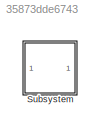
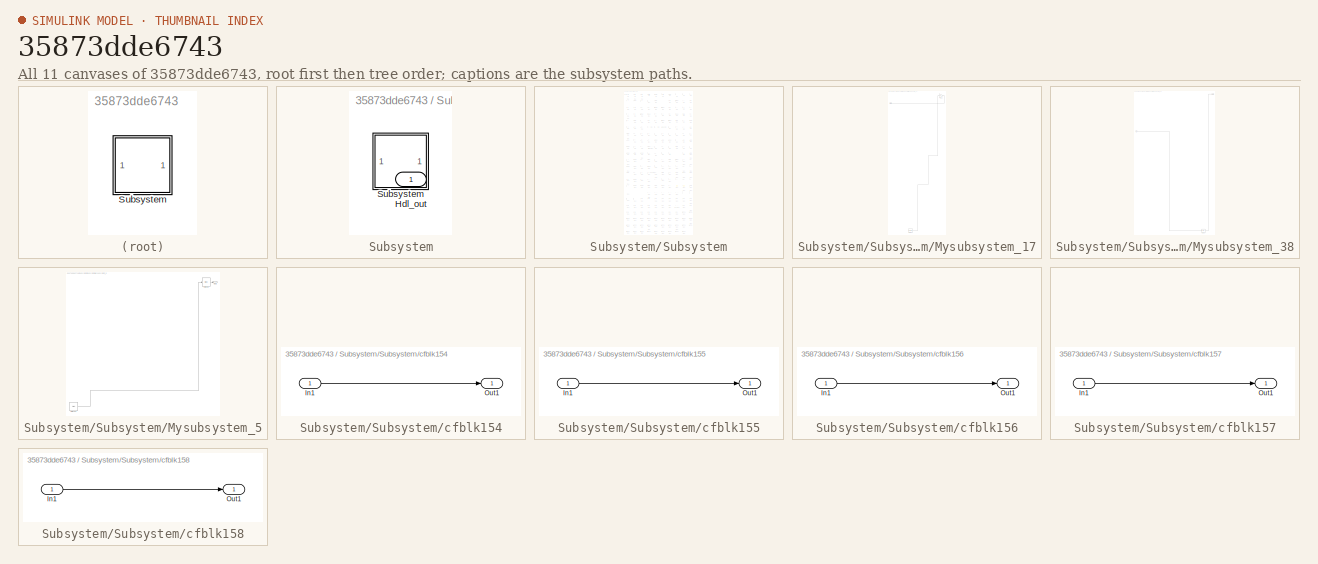
[diagram: thumbnail index - all 11 canvases of the model, root first then tree order]
MODEL slx_35873dde6743
KIND model
CONFIG AbsTol = auto
CONFIG EnableMultiTasking = off
CONFIG FixedStep = auto
CONFIG MaxStep = auto
CONFIG MinStep = auto
CONFIG RelTol = 1e-3
CONFIG SampleTimeConstraint = Unconstrained
CONFIG SolverName = VariableStepAuto
CONFIG StartTime = 0.0
CONFIG StopTime = 10.0
BLOCK [SubSystem] Subsystem
BLOCK [Outport] Subsystem/Hdl_out
  OutDataTypeStr = uint8
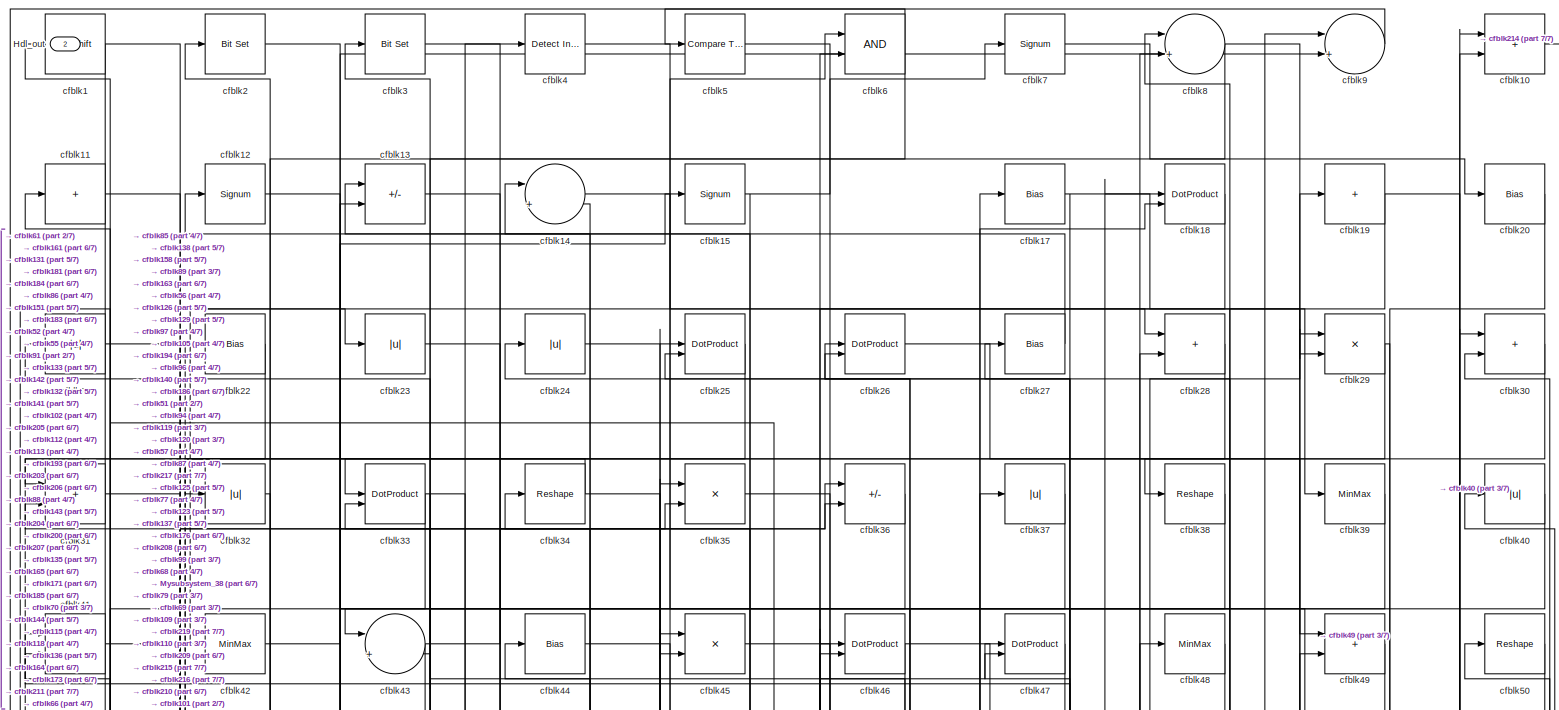
[diagram: Subsystem/Subsystem - part 1/7, full width, top band]
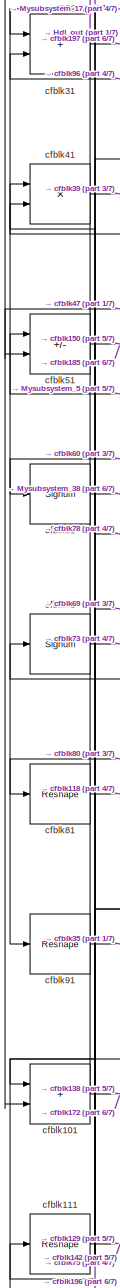
[diagram: Subsystem/Subsystem - part 2/7, middle left region]
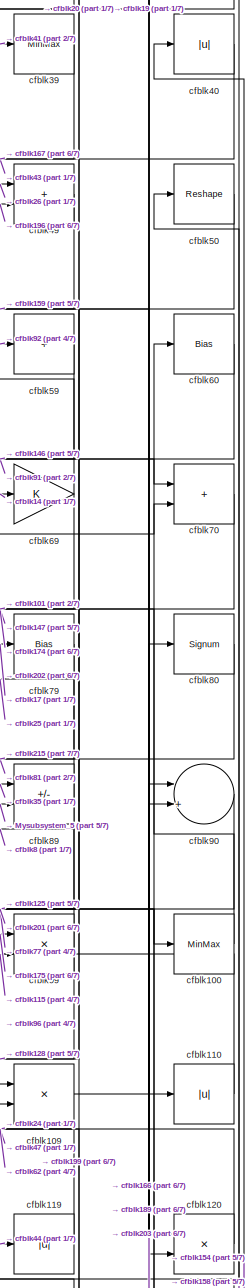
[diagram: Subsystem/Subsystem - part 3/7, middle right region]
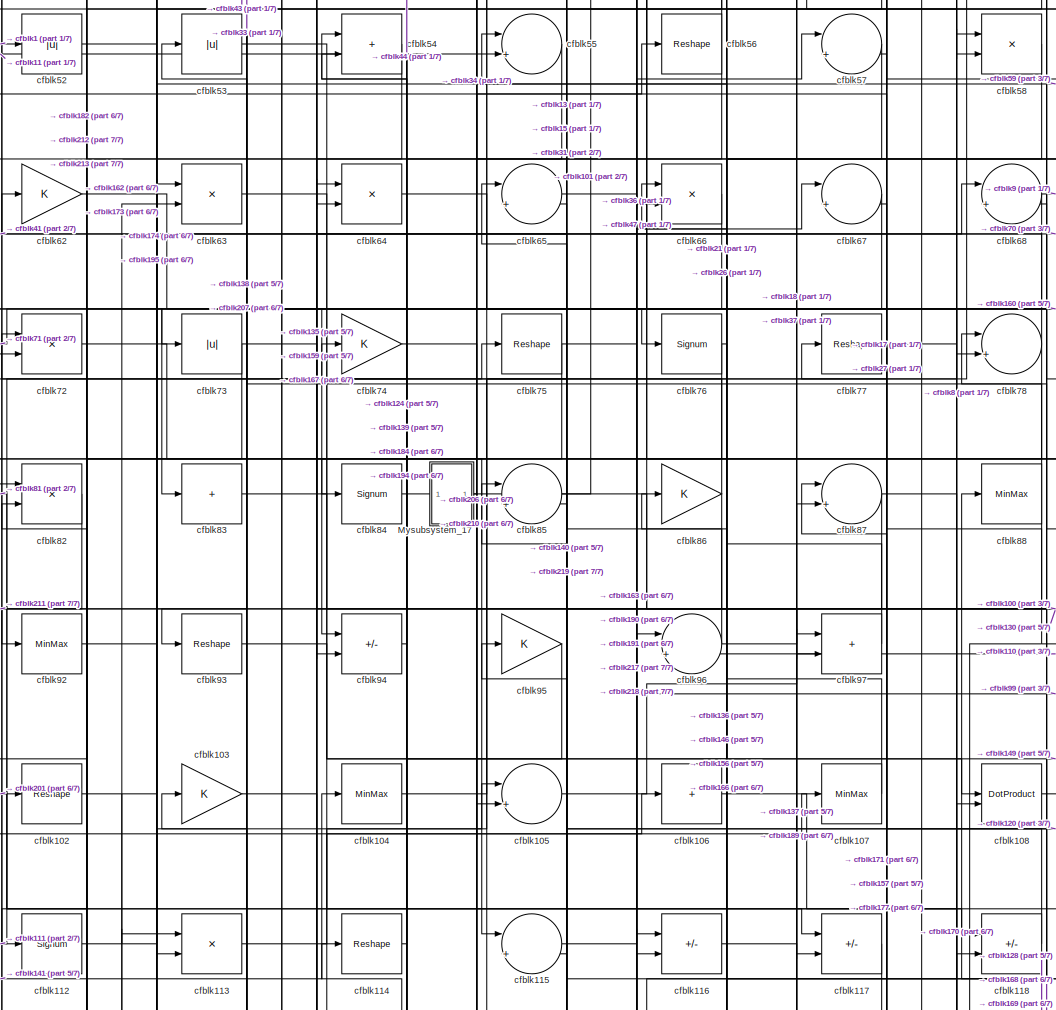
[diagram: Subsystem/Subsystem - part 4/7, central region]
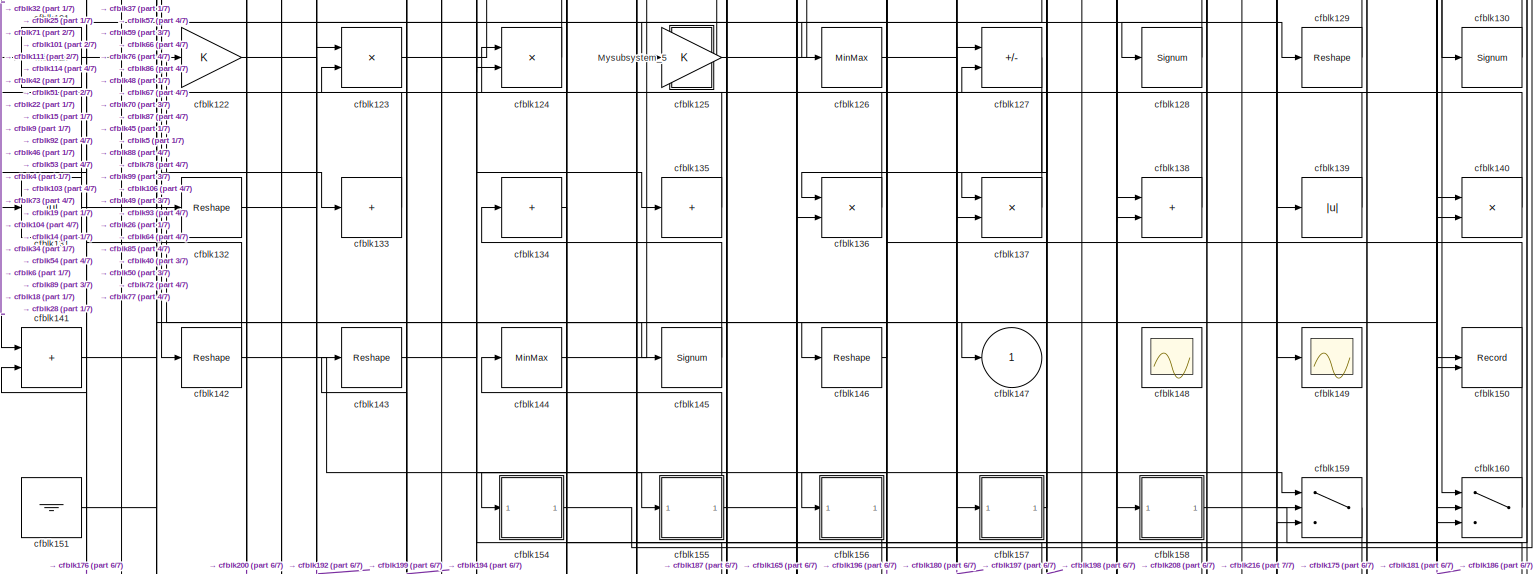
[diagram: Subsystem/Subsystem - part 5/7, full width, middle band]
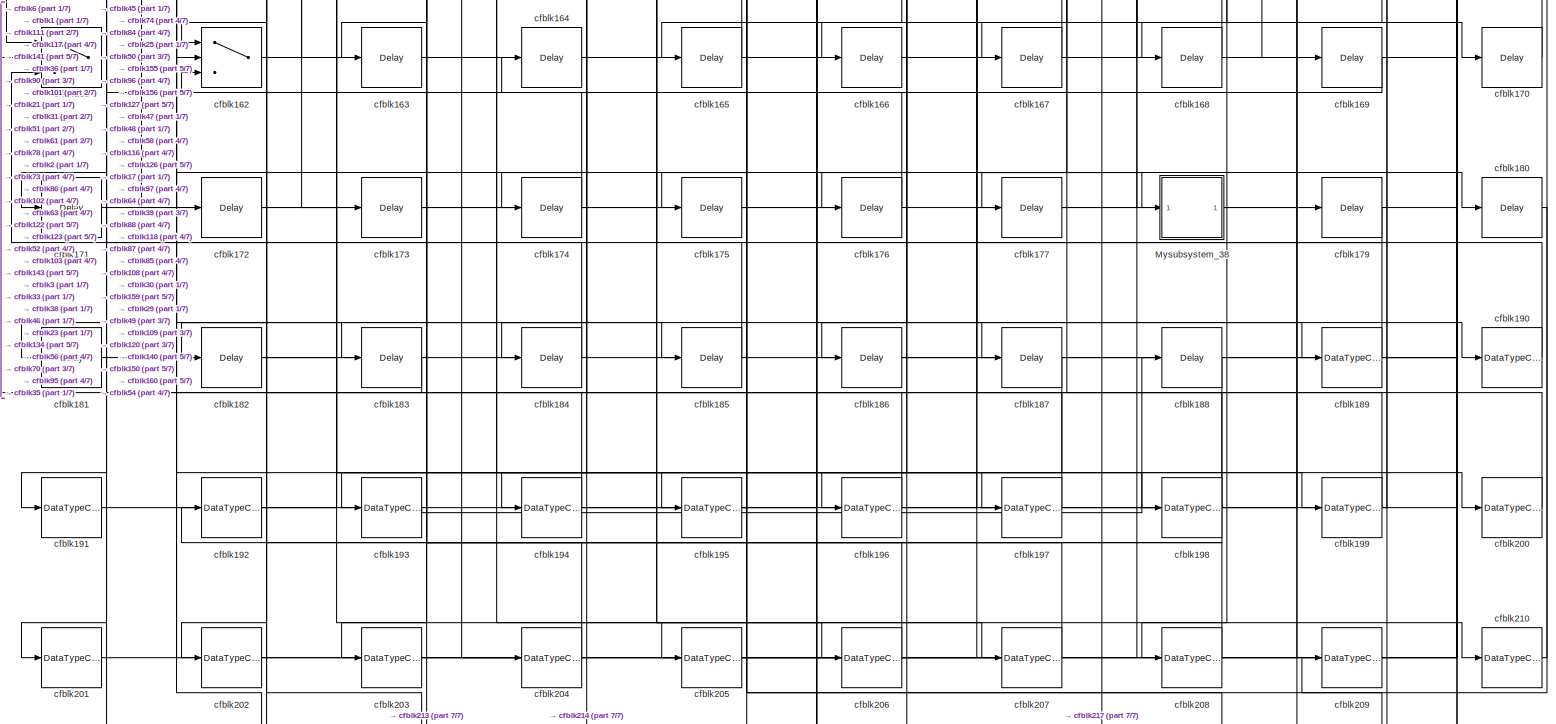
[diagram: Subsystem/Subsystem - part 6/7, full width, bottom band]
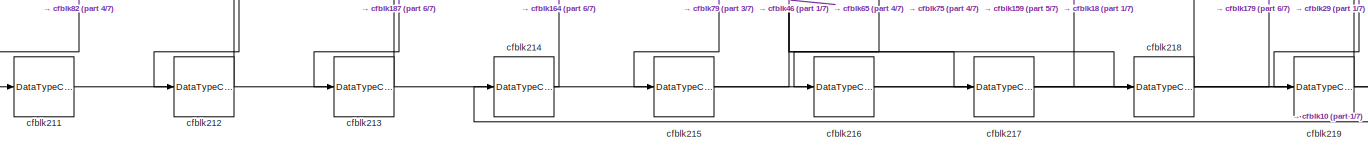
[diagram: Subsystem/Subsystem - part 7/7, full width, bottom band]
BLOCK [SubSystem] Subsystem/Subsystem
BLOCK [Outport] Subsystem/Subsystem/Hdl_out
  OutDataTypeStr = uint8
  Port = 2
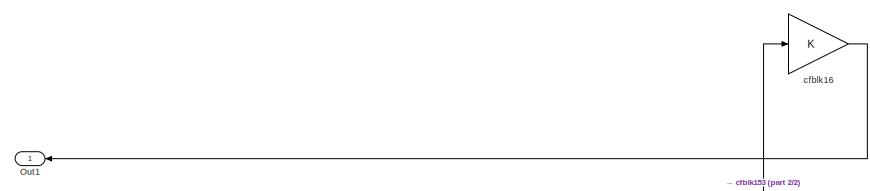
[diagram: Subsystem/Subsystem/Mysubsystem_17 - part 1/2, full width, top band]
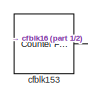
[diagram: Subsystem/Subsystem/Mysubsystem_17 - part 2/2, bottom center region]
BLOCK [SubSystem] Subsystem/Subsystem/Mysubsystem_17
  RTWFcnName = Mysubsystem_17
  RTWFcnNameOpts = User specified
  RTWFileNameOpts = Use function name
  RTWSystemCode = Reusable function
  TreatAsAtomicUnit = on
BLOCK [Outport] Subsystem/Subsystem/Mysubsystem_17/Out1
BLOCK [Reference] Subsystem/Subsystem/Mysubsystem_17/cfblk153  REF=hdlsllib/Sources/Counter
Free-Running
  SourceBlock = hdlsllib/Sources/Counter\nFree-Running
  SourceType = Counter Free-Running
BLOCK [Gain] Subsystem/Subsystem/Mysubsystem_17/cfblk16
BLOCK [SubSystem] Subsystem/Subsystem/Mysubsystem_38
  RTWFcnName = Mysubsystem_38
  RTWFcnNameOpts = User specified
  RTWFileNameOpts = Use function name
  RTWSystemCode = Reusable function
  TreatAsAtomicUnit = on
BLOCK [Inport] Subsystem/Subsystem/Mysubsystem_38/In1
BLOCK [Outport] Subsystem/Subsystem/Mysubsystem_38/Out1
BLOCK [Delay] Subsystem/Subsystem/Mysubsystem_38/cfblk178
  InputPortMap = u0
  SampleTime = 1
BLOCK [SubSystem] Subsystem/Subsystem/Mysubsystem_5
  RTWFcnName = Mysubsystem_5
  RTWFcnNameOpts = User specified
  RTWFileNameOpts = Use function name
  RTWSystemCode = Reusable function
  TreatAsAtomicUnit = on
BLOCK [Outport] Subsystem/Subsystem/Mysubsystem_5/Out1
BLOCK [Ground] Subsystem/Subsystem/Mysubsystem_5/cfblk152
BLOCK [Bias] Subsystem/Subsystem/Mysubsystem_5/cfblk98
  Bias = 0.0
  SaturateOnIntegerOverflow = off
BLOCK [Reference] Subsystem/Subsystem/cfblk1  REF=hdlsllib/Logic and Bit
Operations/Bit Shift
  SourceBlock = hdlsllib/Logic and Bit\nOperations/Bit Shift
  SourceType = Bit Shift
BLOCK [Sum] Subsystem/Subsystem/cfblk10
  IconShape = rectangular
  OutDataTypeStr = uint8
BLOCK [MinMax] Subsystem/Subsystem/cfblk100
  OutDataTypeStr = uint8
BLOCK [Sum] Subsystem/Subsystem/cfblk101
  IconShape = rectangular
  OutDataTypeStr = uint8
BLOCK [Reshape] Subsystem/Subsystem/cfblk102
BLOCK [Gain] Subsystem/Subsystem/cfblk103
  OutDataTypeStr = uint8
BLOCK [MinMax] Subsystem/Subsystem/cfblk104
  OutDataTypeStr = uint8
BLOCK [Sum] Subsystem/Subsystem/cfblk105
  Inputs = |++
  OutDataTypeStr = uint8
BLOCK [Sum] Subsystem/Subsystem/cfblk106
  IconShape = rectangular
  Inputs = +
  OutDataTypeStr = uint8
BLOCK [MinMax] Subsystem/Subsystem/cfblk107
  OutDataTypeStr = uint8
BLOCK [DotProduct] Subsystem/Subsystem/cfblk108
  OutDataTypeStr = uint8
BLOCK [Product] Subsystem/Subsystem/cfblk109
  Inputs = */
  OutDataTypeStr = uint8
  RndMeth = Zero
  SaturateOnIntegerOverflow = on
BLOCK [Sum] Subsystem/Subsystem/cfblk11
  IconShape = rectangular
  Inputs = +
  OutDataTypeStr = uint8
BLOCK [Abs] Subsystem/Subsystem/cfblk110
  OutDataTypeStr = uint8
  SaturateOnIntegerOverflow = off
BLOCK [Reshape] Subsystem/Subsystem/cfblk111
BLOCK [Signum] Subsystem/Subsystem/cfblk112
BLOCK [Product] Subsystem/Subsystem/cfblk113
  Inputs = */
  OutDataTypeStr = uint8
  RndMeth = Zero
  SaturateOnIntegerOverflow = on
BLOCK [Reshape] Subsystem/Subsystem/cfblk114
BLOCK [Sum] Subsystem/Subsystem/cfblk115
  Inputs = |++
  OutDataTypeStr = uint8
BLOCK [Sum] Subsystem/Subsystem/cfblk116
  IconShape = rectangular
  Inputs = +-
  OutDataTypeStr = uint8
BLOCK [Sum] Subsystem/Subsystem/cfblk117
  IconShape = rectangular
  Inputs = +-
  OutDataTypeStr = uint8
BLOCK [Sum] Subsystem/Subsystem/cfblk118
  IconShape = rectangular
  Inputs = +-
  OutDataTypeStr = uint8
BLOCK [Abs] Subsystem/Subsystem/cfblk119
  OutDataTypeStr = uint8
  SaturateOnIntegerOverflow = off
BLOCK [Signum] Subsystem/Subsystem/cfblk12
BLOCK [Product] Subsystem/Subsystem/cfblk120
  Inputs = */
  OutDataTypeStr = uint8
  RndMeth = Zero
  SaturateOnIntegerOverflow = on
BLOCK [MinMax] Subsystem/Subsystem/cfblk121
  OutDataTypeStr = uint8
BLOCK [Gain] Subsystem/Subsystem/cfblk122
  OutDataTypeStr = uint8
BLOCK [Product] Subsystem/Subsystem/cfblk123
  Inputs = */
  OutDataTypeStr = uint8
  RndMeth = Zero
  SaturateOnIntegerOverflow = on
BLOCK [Product] Subsystem/Subsystem/cfblk124
  Inputs = */
  OutDataTypeStr = uint8
  RndMeth = Zero
  SaturateOnIntegerOverflow = on
BLOCK [Gain] Subsystem/Subsystem/cfblk125
  OutDataTypeStr = uint8
BLOCK [MinMax] Subsystem/Subsystem/cfblk126
  OutDataTypeStr = uint8
BLOCK [Sum] Subsystem/Subsystem/cfblk127
  IconShape = rectangular
  Inputs = +-
  OutDataTypeStr = uint8
BLOCK [Signum] Subsystem/Subsystem/cfblk128
BLOCK [Reshape] Subsystem/Subsystem/cfblk129
BLOCK [Sum] Subsystem/Subsystem/cfblk13
  IconShape = rectangular
  Inputs = +-
  OutDataTypeStr = uint8
BLOCK [Signum] Subsystem/Subsystem/cfblk130
BLOCK [Abs] Subsystem/Subsystem/cfblk131
  OutDataTypeStr = uint8
  SaturateOnIntegerOverflow = off
BLOCK [Reshape] Subsystem/Subsystem/cfblk132
BLOCK [Sum] Subsystem/Subsystem/cfblk133
  IconShape = rectangular
  Inputs = +
  OutDataTypeStr = uint8
BLOCK [Sum] Subsystem/Subsystem/cfblk134
  IconShape = rectangular
  Inputs = +
  OutDataTypeStr = uint8
BLOCK [Sum] Subsystem/Subsystem/cfblk135
  IconShape = rectangular
  Inputs = +
  OutDataTypeStr = uint8
BLOCK [Product] Subsystem/Subsystem/cfblk136
  Inputs = */
  OutDataTypeStr = uint8
  RndMeth = Zero
  SaturateOnIntegerOverflow = on
BLOCK [Product] Subsystem/Subsystem/cfblk137
  Inputs = */
  OutDataTypeStr = uint8
  RndMeth = Zero
  SaturateOnIntegerOverflow = on
BLOCK [Sum] Subsystem/Subsystem/cfblk138
  IconShape = rectangular
  OutDataTypeStr = uint8
BLOCK [Abs] Subsystem/Subsystem/cfblk139
  OutDataTypeStr = uint8
  SaturateOnIntegerOverflow = off
BLOCK [Sum] Subsystem/Subsystem/cfblk14
  Inputs = |++
  OutDataTypeStr = uint8
BLOCK [Product] Subsystem/Subsystem/cfblk140
  Inputs = */
  OutDataTypeStr = uint8
  RndMeth = Zero
  SaturateOnIntegerOverflow = on
BLOCK [Sum] Subsystem/Subsystem/cfblk141
  IconShape = rectangular
  OutDataTypeStr = uint8
BLOCK [Reshape] Subsystem/Subsystem/cfblk142
BLOCK [Reshape] Subsystem/Subsystem/cfblk143
BLOCK [MinMax] Subsystem/Subsystem/cfblk144
  OutDataTypeStr = uint8
BLOCK [Signum] Subsystem/Subsystem/cfblk145
BLOCK [Reshape] Subsystem/Subsystem/cfblk146
BLOCK [Outport] Subsystem/Subsystem/cfblk147
  OutDataTypeStr = uint8
  VectorParamsAs1DForOutWhenUnconnected = off
BLOCK [Scope] Subsystem/Subsystem/cfblk148
  Floating = on
  NumInputPorts = 1
  ScopeSpecificationString = Simulink.scopes.TimeScopeBlockCfg('CurrentConfiguration', extmgr.ConfigurationSet(extmgr.Configuration('Core','General UI',true,'FigureColor',[0.156862745098039 0.156862745098039 0.156862745098039]),extmgr.Configuration('Core','Source UI',true),extmgr.Configuration('Sources','WiredSimulink',true,'DataLoggingVariableName','ScopeData1','DataLoggingSaveFormat','StructureWithTime','DataLoggingLimitDat...<+2713ch>
BLOCK [Scope] Subsystem/Subsystem/cfblk149
  Floating = off
  NumInputPorts = 1
  ScopeSpecificationString = Simulink.scopes.TimeScopeBlockCfg('CurrentConfiguration', extmgr.ConfigurationSet(extmgr.Configuration('Core','General UI',true),extmgr.Configuration('Core','Source UI',true),extmgr.Configuration('Sources','WiredSimulink',true,'DataLoggingSaveFormat','Array','DataLoggingLimitDataPoints',true,'DataLoggingDecimation','1'),extmgr.Configuration('Visuals','Time Domain',true,'DisplayPropertyDefaults',st...<+829ch>
BLOCK [Signum] Subsystem/Subsystem/cfblk15
BLOCK [Record] Subsystem/Subsystem/cfblk150
  CompatibilityTag = XY
  FileSettingsInternal = {"entries":[{"content":{"excelSettings":{"content":{},"type":"Streamout.ExcelSettings"}},"type":"Streamout.FileSettingStorage","uuid":""}],"packageUris":["http:\/\/schema.mathworks.com\/mf0\/streamout_blocks\/R2020a"],"version":"1.0"}
  Layout = [1 1]
  SignalsInternal = {"entries":[{"content":{"signals":[{"content":{"blockPath":[],"dimensions":[1],"domain":"","lineColor":"#a2142f","plots":[1],"port":1,"signalID":42273,"signalName":"cfblk194"},"type":"RecordBlkView.Signal","uuid":""},{"content":{"blockPath":[],"dimensions":[1],"domain":"","lineColor":"#139fff","plots":[1],"port":2,"signalID":42276,"signalName":"cfblk51"},"type":"RecordBlkView.Signal","uuid":""}]},...<+143ch>
  VisualizationBindings = {"xyplotplugin":{"info":[{"series":[{"bindingParametersList":[{"parameter":"X-Axis","signalID":42273,"signalName":"cfblk194"},{"parameter":"Y-Axis","signalID":42276,"signalName":"cfblk51"}],"seriesID":4244}],"subplotID":1}]}}
  st = -1
BLOCK [Ground] Subsystem/Subsystem/cfblk151
BLOCK [SubSystem] Subsystem/Subsystem/cfblk154
  LibrarySourceBlock = hdlsllib/Ports &\nSubsystems/Subsystem
BLOCK [Inport] Subsystem/Subsystem/cfblk154/In1
BLOCK [Outport] Subsystem/Subsystem/cfblk154/Out1
BLOCK [SubSystem] Subsystem/Subsystem/cfblk155
  LibrarySourceBlock = hdlsllib/Ports &\nSubsystems/Subsystem
BLOCK [Inport] Subsystem/Subsystem/cfblk155/In1
BLOCK [Outport] Subsystem/Subsystem/cfblk155/Out1
BLOCK [SubSystem] Subsystem/Subsystem/cfblk156
  LibrarySourceBlock = hdlsllib/Ports &\nSubsystems/Subsystem
BLOCK [Inport] Subsystem/Subsystem/cfblk156/In1
BLOCK [Outport] Subsystem/Subsystem/cfblk156/Out1
BLOCK [SubSystem] Subsystem/Subsystem/cfblk157
  LibrarySourceBlock = hdlsllib/Ports &\nSubsystems/Subsystem
BLOCK [Inport] Subsystem/Subsystem/cfblk157/In1
BLOCK [Outport] Subsystem/Subsystem/cfblk157/Out1
BLOCK [SubSystem] Subsystem/Subsystem/cfblk158
  LibrarySourceBlock = hdlsllib/Ports &\nSubsystems/Subsystem
BLOCK [Inport] Subsystem/Subsystem/cfblk158/In1
BLOCK [Outport] Subsystem/Subsystem/cfblk158/Out1
BLOCK [Switch] Subsystem/Subsystem/cfblk159
  InputSameDT = off
  OutDataTypeStr = uint8
  SaturateOnIntegerOverflow = off
BLOCK [Switch] Subsystem/Subsystem/cfblk160
  InputSameDT = off
  OutDataTypeStr = uint8
  SaturateOnIntegerOverflow = off
BLOCK [Switch] Subsystem/Subsystem/cfblk161
  InputSameDT = off
  OutDataTypeStr = uint8
  SaturateOnIntegerOverflow = off
BLOCK [Switch] Subsystem/Subsystem/cfblk162
  InputSameDT = off
  OutDataTypeStr = uint8
  SaturateOnIntegerOverflow = off
BLOCK [Delay] Subsystem/Subsystem/cfblk163
  InputPortMap = u0
  SampleTime = 1
BLOCK [Delay] Subsystem/Subsystem/cfblk164
  InputPortMap = u0
  SampleTime = 1
BLOCK [Delay] Subsystem/Subsystem/cfblk165
  InputPortMap = u0
  SampleTime = 1
BLOCK [Delay] Subsystem/Subsystem/cfblk166
  InputPortMap = u0
  SampleTime = 1
BLOCK [Delay] Subsystem/Subsystem/cfblk167
  InputPortMap = u0
  SampleTime = 1
BLOCK [Delay] Subsystem/Subsystem/cfblk168
  InputPortMap = u0
  SampleTime = 1
BLOCK [Delay] Subsystem/Subsystem/cfblk169
  InputPortMap = u0
  SampleTime = 1
BLOCK [Bias] Subsystem/Subsystem/cfblk17
  Bias = 0.0
  SaturateOnIntegerOverflow = off
BLOCK [Delay] Subsystem/Subsystem/cfblk170
  InputPortMap = u0
  SampleTime = 1
BLOCK [Delay] Subsystem/Subsystem/cfblk171
  InputPortMap = u0
  SampleTime = 1
BLOCK [Delay] Subsystem/Subsystem/cfblk172
  InputPortMap = u0
  SampleTime = 1
BLOCK [Delay] Subsystem/Subsystem/cfblk173
  InputPortMap = u0
  SampleTime = 1
BLOCK [Delay] Subsystem/Subsystem/cfblk174
  InputPortMap = u0
  SampleTime = 1
BLOCK [Delay] Subsystem/Subsystem/cfblk175
  InputPortMap = u0
  SampleTime = 1
BLOCK [Delay] Subsystem/Subsystem/cfblk176
  InputPortMap = u0
  SampleTime = 1
BLOCK [Delay] Subsystem/Subsystem/cfblk177
  InputPortMap = u0
  SampleTime = 1
BLOCK [Delay] Subsystem/Subsystem/cfblk179
  InputPortMap = u0
  SampleTime = 1
BLOCK [DotProduct] Subsystem/Subsystem/cfblk18
  OutDataTypeStr = uint8
BLOCK [Delay] Subsystem/Subsystem/cfblk180
  InputPortMap = u0
  SampleTime = 1
BLOCK [Delay] Subsystem/Subsystem/cfblk181
  InputPortMap = u0
  SampleTime = 1
BLOCK [Delay] Subsystem/Subsystem/cfblk182
  InputPortMap = u0
  SampleTime = 1
BLOCK [Delay] Subsystem/Subsystem/cfblk183
  InputPortMap = u0
  SampleTime = 1
BLOCK [Delay] Subsystem/Subsystem/cfblk184
  InputPortMap = u0
  SampleTime = 1
BLOCK [Delay] Subsystem/Subsystem/cfblk185
  InputPortMap = u0
  SampleTime = 1
BLOCK [Delay] Subsystem/Subsystem/cfblk186
  InputPortMap = u0
  SampleTime = 1
BLOCK [Delay] Subsystem/Subsystem/cfblk187
  InputPortMap = u0
  SampleTime = 1
BLOCK [Delay] Subsystem/Subsystem/cfblk188
  InputPortMap = u0
  SampleTime = 1
BLOCK [DataTypeConversion] Subsystem/Subsystem/cfblk189
  OutDataTypeStr = uint8
  RndMeth = Floor
  SaturateOnIntegerOverflow = off
BLOCK [Sum] Subsystem/Subsystem/cfblk19
  IconShape = rectangular
  Inputs = +
  OutDataTypeStr = uint8
BLOCK [DataTypeConversion] Subsystem/Subsystem/cfblk190
  OutDataTypeStr = uint8
  RndMeth = Floor
  SaturateOnIntegerOverflow = off
BLOCK [DataTypeConversion] Subsystem/Subsystem/cfblk191
  OutDataTypeStr = uint8
  RndMeth = Floor
  SaturateOnIntegerOverflow = off
BLOCK [DataTypeConversion] Subsystem/Subsystem/cfblk192
  OutDataTypeStr = uint8
  RndMeth = Floor
  SaturateOnIntegerOverflow = off
BLOCK [DataTypeConversion] Subsystem/Subsystem/cfblk193
  OutDataTypeStr = uint8
  RndMeth = Floor
  SaturateOnIntegerOverflow = off
BLOCK [DataTypeConversion] Subsystem/Subsystem/cfblk194
  OutDataTypeStr = uint8
  RndMeth = Floor
  SaturateOnIntegerOverflow = off
BLOCK [DataTypeConversion] Subsystem/Subsystem/cfblk195
  OutDataTypeStr = uint8
  RndMeth = Floor
  SaturateOnIntegerOverflow = off
BLOCK [DataTypeConversion] Subsystem/Subsystem/cfblk196
  OutDataTypeStr = uint8
  RndMeth = Floor
  SaturateOnIntegerOverflow = off
BLOCK [DataTypeConversion] Subsystem/Subsystem/cfblk197
  OutDataTypeStr = uint8
  RndMeth = Floor
  SaturateOnIntegerOverflow = off
BLOCK [DataTypeConversion] Subsystem/Subsystem/cfblk198
  OutDataTypeStr = uint8
  RndMeth = Floor
  SaturateOnIntegerOverflow = off
BLOCK [DataTypeConversion] Subsystem/Subsystem/cfblk199
  OutDataTypeStr = uint8
  RndMeth = Floor
  SaturateOnIntegerOverflow = off
BLOCK [Reference] Subsystem/Subsystem/cfblk2  REF=simulink/Logic and Bit
Operations/Bit Set
  LibrarySourceBlock = hdlsllib/Logic and Bit\nOperations/Bit Set
  SourceBlock = simulink/Logic and Bit\nOperations/Bit Set
  SourceType = Bit Set
BLOCK [Bias] Subsystem/Subsystem/cfblk20
  Bias = 0.0
  SaturateOnIntegerOverflow = off
BLOCK [DataTypeConversion] Subsystem/Subsystem/cfblk200
  OutDataTypeStr = uint8
  RndMeth = Floor
  SaturateOnIntegerOverflow = off
BLOCK [DataTypeConversion] Subsystem/Subsystem/cfblk201
  OutDataTypeStr = uint8
  RndMeth = Floor
  SaturateOnIntegerOverflow = off
BLOCK [DataTypeConversion] Subsystem/Subsystem/cfblk202
  OutDataTypeStr = uint8
  RndMeth = Floor
  SaturateOnIntegerOverflow = off
BLOCK [DataTypeConversion] Subsystem/Subsystem/cfblk203
  OutDataTypeStr = uint8
  RndMeth = Floor
  SaturateOnIntegerOverflow = off
BLOCK [DataTypeConversion] Subsystem/Subsystem/cfblk204
  OutDataTypeStr = uint8
  RndMeth = Floor
  SaturateOnIntegerOverflow = off
BLOCK [DataTypeConversion] Subsystem/Subsystem/cfblk205
  OutDataTypeStr = uint8
  RndMeth = Floor
  SaturateOnIntegerOverflow = off
BLOCK [DataTypeConversion] Subsystem/Subsystem/cfblk206
  OutDataTypeStr = uint8
  RndMeth = Floor
  SaturateOnIntegerOverflow = off
BLOCK [DataTypeConversion] Subsystem/Subsystem/cfblk207
  OutDataTypeStr = uint8
  RndMeth = Floor
  SaturateOnIntegerOverflow = off
BLOCK [DataTypeConversion] Subsystem/Subsystem/cfblk208
  OutDataTypeStr = uint8
  RndMeth = Floor
  SaturateOnIntegerOverflow = off
BLOCK [DataTypeConversion] Subsystem/Subsystem/cfblk209
  OutDataTypeStr = uint8
  RndMeth = Floor
  SaturateOnIntegerOverflow = off
BLOCK [Abs] Subsystem/Subsystem/cfblk21
  OutDataTypeStr = uint8
  SaturateOnIntegerOverflow = off
BLOCK [DataTypeConversion] Subsystem/Subsystem/cfblk210
  OutDataTypeStr = uint8
  RndMeth = Floor
  SaturateOnIntegerOverflow = off
BLOCK [DataTypeConversion] Subsystem/Subsystem/cfblk211
  OutDataTypeStr = uint8
  RndMeth = Floor
  SaturateOnIntegerOverflow = off
BLOCK [DataTypeConversion] Subsystem/Subsystem/cfblk212
  OutDataTypeStr = uint8
  RndMeth = Floor
  SaturateOnIntegerOverflow = off
BLOCK [DataTypeConversion] Subsystem/Subsystem/cfblk213
  OutDataTypeStr = uint8
  RndMeth = Floor
  SaturateOnIntegerOverflow = off
BLOCK [DataTypeConversion] Subsystem/Subsystem/cfblk214
  OutDataTypeStr = uint8
  RndMeth = Floor
  SaturateOnIntegerOverflow = off
BLOCK [DataTypeConversion] Subsystem/Subsystem/cfblk215
  OutDataTypeStr = uint8
  RndMeth = Floor
  SaturateOnIntegerOverflow = off
BLOCK [DataTypeConversion] Subsystem/Subsystem/cfblk216
  OutDataTypeStr = uint8
  RndMeth = Floor
  SaturateOnIntegerOverflow = off
BLOCK [DataTypeConversion] Subsystem/Subsystem/cfblk217
  OutDataTypeStr = uint8
  RndMeth = Floor
  SaturateOnIntegerOverflow = off
BLOCK [DataTypeConversion] Subsystem/Subsystem/cfblk218
  OutDataTypeStr = uint8
  RndMeth = Floor
  SaturateOnIntegerOverflow = off
BLOCK [DataTypeConversion] Subsystem/Subsystem/cfblk219
  OutDataTypeStr = uint8
  RndMeth = Floor
  SaturateOnIntegerOverflow = off
BLOCK [Bias] Subsystem/Subsystem/cfblk22
  Bias = 0.0
  SaturateOnIntegerOverflow = off
BLOCK [Abs] Subsystem/Subsystem/cfblk23
  OutDataTypeStr = uint8
  SaturateOnIntegerOverflow = off
BLOCK [Abs] Subsystem/Subsystem/cfblk24
  OutDataTypeStr = uint8
  SaturateOnIntegerOverflow = off
BLOCK [DotProduct] Subsystem/Subsystem/cfblk25
  OutDataTypeStr = uint8
BLOCK [DotProduct] Subsystem/Subsystem/cfblk26
  OutDataTypeStr = uint8
BLOCK [Bias] Subsystem/Subsystem/cfblk27
  Bias = 0.0
  SaturateOnIntegerOverflow = off
BLOCK [Sum] Subsystem/Subsystem/cfblk28
  IconShape = rectangular
  OutDataTypeStr = uint8
BLOCK [Product] Subsystem/Subsystem/cfblk29
  Inputs = */
  OutDataTypeStr = uint8
  RndMeth = Zero
  SaturateOnIntegerOverflow = on
BLOCK [Reference] Subsystem/Subsystem/cfblk3  REF=simulink/Logic and Bit
Operations/Bit Set
  LibrarySourceBlock = hdlsllib/Logic and Bit\nOperations/Bit Set
  SourceBlock = simulink/Logic and Bit\nOperations/Bit Set
  SourceType = Bit Set
BLOCK [Sum] Subsystem/Subsystem/cfblk30
  IconShape = rectangular
  OutDataTypeStr = uint8
BLOCK [Sum] Subsystem/Subsystem/cfblk31
  IconShape = rectangular
  OutDataTypeStr = uint8
BLOCK [Abs] Subsystem/Subsystem/cfblk32
  OutDataTypeStr = uint8
  SaturateOnIntegerOverflow = off
BLOCK [DotProduct] Subsystem/Subsystem/cfblk33
  OutDataTypeStr = uint8
BLOCK [Reshape] Subsystem/Subsystem/cfblk34
BLOCK [Product] Subsystem/Subsystem/cfblk35
  Inputs = */
  OutDataTypeStr = uint8
  RndMeth = Zero
  SaturateOnIntegerOverflow = on
BLOCK [Sum] Subsystem/Subsystem/cfblk36
  IconShape = rectangular
  Inputs = +-
  OutDataTypeStr = uint8
BLOCK [Abs] Subsystem/Subsystem/cfblk37
  OutDataTypeStr = uint8
  SaturateOnIntegerOverflow = off
BLOCK [Reshape] Subsystem/Subsystem/cfblk38
BLOCK [MinMax] Subsystem/Subsystem/cfblk39
  OutDataTypeStr = uint8
BLOCK [Reference] Subsystem/Subsystem/cfblk4  REF=simulink/Logic and Bit
Operations/Detect
Increase
  LibrarySourceBlock = hdlsllib/Logic and Bit\nOperations/Detect\nIncrease
  SourceBlock = simulink/Logic and Bit\nOperations/Detect\nIncrease
  SourceType = Detect Increase
BLOCK [Abs] Subsystem/Subsystem/cfblk40
  OutDataTypeStr = uint8
  SaturateOnIntegerOverflow = off
BLOCK [Product] Subsystem/Subsystem/cfblk41
  Inputs = */
  OutDataTypeStr = uint8
  RndMeth = Zero
  SaturateOnIntegerOverflow = on
BLOCK [MinMax] Subsystem/Subsystem/cfblk42
  OutDataTypeStr = uint8
BLOCK [Sum] Subsystem/Subsystem/cfblk43
  Inputs = |++
  OutDataTypeStr = uint8
BLOCK [Bias] Subsystem/Subsystem/cfblk44
  Bias = 0.0
  SaturateOnIntegerOverflow = off
BLOCK [Product] Subsystem/Subsystem/cfblk45
  Inputs = */
  OutDataTypeStr = uint8
  RndMeth = Zero
  SaturateOnIntegerOverflow = on
BLOCK [DotProduct] Subsystem/Subsystem/cfblk46
  OutDataTypeStr = uint8
BLOCK [DotProduct] Subsystem/Subsystem/cfblk47
  OutDataTypeStr = uint8
BLOCK [MinMax] Subsystem/Subsystem/cfblk48
  OutDataTypeStr = uint8
BLOCK [Sum] Subsystem/Subsystem/cfblk49
  IconShape = rectangular
  OutDataTypeStr = uint8
BLOCK [Reference] Subsystem/Subsystem/cfblk5  REF=hdlsllib/Logic and Bit
Operations/Compare
To Zero
  SourceBlock = hdlsllib/Logic and Bit\nOperations/Compare\nTo Zero
  SourceType = Compare To Zero
BLOCK [Reshape] Subsystem/Subsystem/cfblk50
BLOCK [Sum] Subsystem/Subsystem/cfblk51
  IconShape = rectangular
  Inputs = +-
  OutDataTypeStr = uint8
BLOCK [Abs] Subsystem/Subsystem/cfblk52
  OutDataTypeStr = uint8
  SaturateOnIntegerOverflow = off
BLOCK [Abs] Subsystem/Subsystem/cfblk53
  OutDataTypeStr = uint8
  SaturateOnIntegerOverflow = off
BLOCK [Sum] Subsystem/Subsystem/cfblk54
  IconShape = rectangular
  OutDataTypeStr = uint8
BLOCK [Sum] Subsystem/Subsystem/cfblk55
  Inputs = |++
  OutDataTypeStr = uint8
BLOCK [Reshape] Subsystem/Subsystem/cfblk56
BLOCK [Sum] Subsystem/Subsystem/cfblk57
  Inputs = |++
  OutDataTypeStr = uint8
BLOCK [Product] Subsystem/Subsystem/cfblk58
  Inputs = */
  OutDataTypeStr = uint8
  RndMeth = Zero
  SaturateOnIntegerOverflow = on
BLOCK [Sum] Subsystem/Subsystem/cfblk59
  IconShape = rectangular
  Inputs = +
  OutDataTypeStr = uint8
BLOCK [Logic] Subsystem/Subsystem/cfblk6
  AllPortsSameDT = off
  OutDataTypeStr = boolean
BLOCK [Bias] Subsystem/Subsystem/cfblk60
  Bias = 0.0
  SaturateOnIntegerOverflow = off
BLOCK [Signum] Subsystem/Subsystem/cfblk61
BLOCK [Gain] Subsystem/Subsystem/cfblk62
  OutDataTypeStr = uint8
BLOCK [Product] Subsystem/Subsystem/cfblk63
  Inputs = */
  OutDataTypeStr = uint8
  RndMeth = Zero
  SaturateOnIntegerOverflow = on
BLOCK [Product] Subsystem/Subsystem/cfblk64
  Inputs = */
  OutDataTypeStr = uint8
  RndMeth = Zero
  SaturateOnIntegerOverflow = on
BLOCK [Sum] Subsystem/Subsystem/cfblk65
  Inputs = |++
  OutDataTypeStr = uint8
BLOCK [Product] Subsystem/Subsystem/cfblk66
  Inputs = */
  OutDataTypeStr = uint8
  RndMeth = Zero
  SaturateOnIntegerOverflow = on
BLOCK [Sum] Subsystem/Subsystem/cfblk67
  Inputs = |++
  OutDataTypeStr = uint8
BLOCK [Sum] Subsystem/Subsystem/cfblk68
  Inputs = |++
  OutDataTypeStr = uint8
BLOCK [Gain] Subsystem/Subsystem/cfblk69
  OutDataTypeStr = uint8
BLOCK [Signum] Subsystem/Subsystem/cfblk7
BLOCK [Sum] Subsystem/Subsystem/cfblk70
  IconShape = rectangular
  OutDataTypeStr = uint8
BLOCK [Signum] Subsystem/Subsystem/cfblk71
BLOCK [Product] Subsystem/Subsystem/cfblk72
  Inputs = */
  OutDataTypeStr = uint8
  RndMeth = Zero
  SaturateOnIntegerOverflow = on
BLOCK [Abs] Subsystem/Subsystem/cfblk73
  OutDataTypeStr = uint8
  SaturateOnIntegerOverflow = off
BLOCK [Gain] Subsystem/Subsystem/cfblk74
  OutDataTypeStr = uint8
BLOCK [Reshape] Subsystem/Subsystem/cfblk75
BLOCK [Signum] Subsystem/Subsystem/cfblk76
BLOCK [Reshape] Subsystem/Subsystem/cfblk77
BLOCK [Sum] Subsystem/Subsystem/cfblk78
  Inputs = |++
  OutDataTypeStr = uint8
BLOCK [Bias] Subsystem/Subsystem/cfblk79
  Bias = 0.0
  SaturateOnIntegerOverflow = off
BLOCK [Sum] Subsystem/Subsystem/cfblk8
  Inputs = |++
  OutDataTypeStr = uint8
BLOCK [Signum] Subsystem/Subsystem/cfblk80
BLOCK [Reshape] Subsystem/Subsystem/cfblk81
BLOCK [Product] Subsystem/Subsystem/cfblk82
  Inputs = */
  OutDataTypeStr = uint8
  RndMeth = Zero
  SaturateOnIntegerOverflow = on
BLOCK [Sum] Subsystem/Subsystem/cfblk83
  IconShape = rectangular
  Inputs = +
  OutDataTypeStr = uint8
BLOCK [Signum] Subsystem/Subsystem/cfblk84
BLOCK [Sum] Subsystem/Subsystem/cfblk85
  Inputs = |++
  OutDataTypeStr = uint8
BLOCK [Gain] Subsystem/Subsystem/cfblk86
  OutDataTypeStr = uint8
BLOCK [Sum] Subsystem/Subsystem/cfblk87
  Inputs = |++
  OutDataTypeStr = uint8
BLOCK [MinMax] Subsystem/Subsystem/cfblk88
  OutDataTypeStr = uint8
BLOCK [Sum] Subsystem/Subsystem/cfblk89
  IconShape = rectangular
  Inputs = +-
  OutDataTypeStr = uint8
BLOCK [Sum] Subsystem/Subsystem/cfblk9
  Inputs = |++
  OutDataTypeStr = uint8
BLOCK [Sum] Subsystem/Subsystem/cfblk90
  Inputs = |++
  OutDataTypeStr = uint8
BLOCK [Reshape] Subsystem/Subsystem/cfblk91
BLOCK [MinMax] Subsystem/Subsystem/cfblk92
  OutDataTypeStr = uint8
BLOCK [Reshape] Subsystem/Subsystem/cfblk93
BLOCK [Sum] Subsystem/Subsystem/cfblk94
  IconShape = rectangular
  Inputs = +-
  OutDataTypeStr = uint8
BLOCK [Gain] Subsystem/Subsystem/cfblk95
  OutDataTypeStr = uint8
BLOCK [Sum] Subsystem/Subsystem/cfblk96
  Inputs = |++
  OutDataTypeStr = uint8
BLOCK [Sum] Subsystem/Subsystem/cfblk97
  IconShape = rectangular
  OutDataTypeStr = uint8
BLOCK [Product] Subsystem/Subsystem/cfblk99
  Inputs = */
  OutDataTypeStr = uint8
  RndMeth = Zero
  SaturateOnIntegerOverflow = on
LINE Subsystem/Subsystem/Mysubsystem_17/cfblk153:1 -> Subsystem/Subsystem/Mysubsystem_17/cfblk16:1
LINE Subsystem/Subsystem/Mysubsystem_17/cfblk16:1 -> Subsystem/Subsystem/Mysubsystem_17/Out1:1
NET Subsystem/Subsystem/Mysubsystem_17:1 -> Subsystem/Subsystem/cfblk101:2, Subsystem/Subsystem/cfblk31:1
LINE Subsystem/Subsystem/Mysubsystem_38/In1:1 -> Subsystem/Subsystem/Mysubsystem_38/cfblk178:1
LINE Subsystem/Subsystem/Mysubsystem_38/cfblk178:1 -> Subsystem/Subsystem/Mysubsystem_38/Out1:1
LINE Subsystem/Subsystem/Mysubsystem_38:1 -> Subsystem/Subsystem/cfblk29:1
LINE Subsystem/Subsystem/Mysubsystem_5/cfblk152:1 -> Subsystem/Subsystem/Mysubsystem_5/cfblk98:1
LINE Subsystem/Subsystem/Mysubsystem_5/cfblk98:1 -> Subsystem/Subsystem/Mysubsystem_5/Out1:1
NET Subsystem/Subsystem/Mysubsystem_5:1 -> Subsystem/Subsystem/cfblk51:1, Subsystem/Subsystem/cfblk89:2
LINE Subsystem/Subsystem/cfblk100:1 -> Subsystem/Subsystem/cfblk60:1
NET Subsystem/Subsystem/cfblk101:1 -> Subsystem/Subsystem/Hdl_out:1, Subsystem/Subsystem/cfblk138:2, Subsystem/Subsystem/cfblk172:1
NET Subsystem/Subsystem/cfblk102:1 -> Subsystem/Subsystem/cfblk13:2, Subsystem/Subsystem/cfblk173:1
LINE Subsystem/Subsystem/cfblk103:1 -> Subsystem/Subsystem/cfblk159:1
LINE Subsystem/Subsystem/cfblk104:1 -> Subsystem/Subsystem/cfblk58:1
LINE Subsystem/Subsystem/cfblk105:1 -> Subsystem/Subsystem/cfblk37:1
LINE Subsystem/Subsystem/cfblk106:1 -> Subsystem/Subsystem/cfblk139:1
LINE Subsystem/Subsystem/cfblk107:1 -> Subsystem/Subsystem/cfblk55:1
NET Subsystem/Subsystem/cfblk108:1 -> Subsystem/Subsystem/cfblk168:1, Subsystem/Subsystem/cfblk169:1, Subsystem/Subsystem/cfblk68:2
LINE Subsystem/Subsystem/cfblk109:1 -> Subsystem/Subsystem/cfblk80:1
LINE Subsystem/Subsystem/cfblk10:1 -> Subsystem/Subsystem/cfblk214:1
LINE Subsystem/Subsystem/cfblk110:1 -> Subsystem/Subsystem/cfblk96:2
NET Subsystem/Subsystem/cfblk111:1 -> Subsystem/Subsystem/cfblk129:1, Subsystem/Subsystem/cfblk75:1
NET Subsystem/Subsystem/cfblk112:1 -> Subsystem/Subsystem/cfblk105:1, Subsystem/Subsystem/cfblk113:1
LINE Subsystem/Subsystem/cfblk113:1 -> Subsystem/Subsystem/cfblk107:1
LINE Subsystem/Subsystem/cfblk114:1 -> Subsystem/Subsystem/cfblk74:1
NET Subsystem/Subsystem/cfblk115:1 -> Subsystem/Subsystem/cfblk57:1, Subsystem/Subsystem/cfblk99:2
LINE Subsystem/Subsystem/cfblk116:1 -> Subsystem/Subsystem/cfblk189:1
LINE Subsystem/Subsystem/cfblk117:1 -> Subsystem/Subsystem/cfblk171:1
LINE Subsystem/Subsystem/cfblk118:1 -> Subsystem/Subsystem/cfblk13:1
LINE Subsystem/Subsystem/cfblk119:1 -> Subsystem/Subsystem/cfblk24:1
NET Subsystem/Subsystem/cfblk11:1 -> Subsystem/Subsystem/cfblk23:1, Subsystem/Subsystem/cfblk55:2
NET Subsystem/Subsystem/cfblk120:1 -> Subsystem/Subsystem/cfblk47:2, Subsystem/Subsystem/cfblk62:1
LINE Subsystem/Subsystem/cfblk121:1 -> Subsystem/Subsystem/cfblk133:1
LINE Subsystem/Subsystem/cfblk122:1 -> Subsystem/Subsystem/cfblk199:1
LINE Subsystem/Subsystem/cfblk123:1 -> Subsystem/Subsystem/cfblk19:1
LINE Subsystem/Subsystem/cfblk124:1 -> Subsystem/Subsystem/cfblk104:1
LINE Subsystem/Subsystem/cfblk125:1 -> Subsystem/Subsystem/cfblk28:2
LINE Subsystem/Subsystem/cfblk126:1 -> Subsystem/Subsystem/cfblk180:1
LINE Subsystem/Subsystem/cfblk127:1 -> Subsystem/Subsystem/cfblk196:1
LINE Subsystem/Subsystem/cfblk128:1 -> Subsystem/Subsystem/cfblk88:1
LINE Subsystem/Subsystem/cfblk129:1 -> Subsystem/Subsystem/cfblk26:1
LINE Subsystem/Subsystem/cfblk12:1 -> Subsystem/Subsystem/cfblk45:2
NET Subsystem/Subsystem/cfblk130:1 -> Subsystem/Subsystem/cfblk72:1, Subsystem/Subsystem/cfblk77:1
NET Subsystem/Subsystem/cfblk131:1 -> Subsystem/Subsystem/cfblk121:1, Subsystem/Subsystem/cfblk157:1
LINE Subsystem/Subsystem/cfblk132:1 -> Subsystem/Subsystem/cfblk15:1
LINE Subsystem/Subsystem/cfblk133:1 -> Subsystem/Subsystem/cfblk22:1
LINE Subsystem/Subsystem/cfblk134:1 -> Subsystem/Subsystem/cfblk154:1
LINE Subsystem/Subsystem/cfblk135:1 -> Subsystem/Subsystem/cfblk14:2
LINE Subsystem/Subsystem/cfblk136:1 -> Subsystem/Subsystem/cfblk34:1
LINE Subsystem/Subsystem/cfblk137:1 -> Subsystem/Subsystem/cfblk14:1
LINE Subsystem/Subsystem/cfblk138:1 -> Subsystem/Subsystem/cfblk53:1
LINE Subsystem/Subsystem/cfblk139:1 -> Subsystem/Subsystem/cfblk54:1
LINE Subsystem/Subsystem/cfblk13:1 -> Subsystem/Subsystem/cfblk97:2
LINE Subsystem/Subsystem/cfblk140:1 -> Subsystem/Subsystem/cfblk85:2
NET Subsystem/Subsystem/cfblk141:1 -> Subsystem/Subsystem/cfblk106:1, Subsystem/Subsystem/cfblk114:1
NET Subsystem/Subsystem/cfblk142:1 -> Subsystem/Subsystem/cfblk155:1, Subsystem/Subsystem/cfblk71:1, Subsystem/Subsystem/cfblk9:2
NET Subsystem/Subsystem/cfblk143:1 -> Subsystem/Subsystem/cfblk145:1, Subsystem/Subsystem/cfblk4:1
LINE Subsystem/Subsystem/cfblk144:1 -> Subsystem/Subsystem/cfblk6:1
LINE Subsystem/Subsystem/cfblk145:1 -> Subsystem/Subsystem/cfblk124:1
LINE Subsystem/Subsystem/cfblk146:1 -> Subsystem/Subsystem/cfblk66:1
LINE Subsystem/Subsystem/cfblk14:1 -> Subsystem/Subsystem/cfblk69:1
LINE Subsystem/Subsystem/cfblk151:1 -> Subsystem/Subsystem/cfblk42:1
LINE Subsystem/Subsystem/cfblk154/In1:1 -> Subsystem/Subsystem/cfblk154/Out1:1
LINE Subsystem/Subsystem/cfblk154:1 -> Subsystem/Subsystem/cfblk40:1
LINE Subsystem/Subsystem/cfblk155/In1:1 -> Subsystem/Subsystem/cfblk155/Out1:1
NET Subsystem/Subsystem/cfblk155:1 -> Subsystem/Subsystem/cfblk144:1, Subsystem/Subsystem/cfblk187:1
LINE Subsystem/Subsystem/cfblk156/In1:1 -> Subsystem/Subsystem/cfblk156/Out1:1
LINE Subsystem/Subsystem/cfblk156:1 -> Subsystem/Subsystem/cfblk165:1
LINE Subsystem/Subsystem/cfblk157/In1:1 -> Subsystem/Subsystem/cfblk157/Out1:1
LINE Subsystem/Subsystem/cfblk157:1 -> Subsystem/Subsystem/cfblk87:1
LINE Subsystem/Subsystem/cfblk158/In1:1 -> Subsystem/Subsystem/cfblk158/Out1:1
LINE Subsystem/Subsystem/cfblk158:1 -> Subsystem/Subsystem/cfblk50:1
LINE Subsystem/Subsystem/cfblk159:1 -> Subsystem/Subsystem/cfblk216:1
NET Subsystem/Subsystem/cfblk15:1 -> Subsystem/Subsystem/cfblk115:2, Subsystem/Subsystem/cfblk7:1
NET Subsystem/Subsystem/cfblk160:1 -> Subsystem/Subsystem/cfblk67:2, Subsystem/Subsystem/cfblk78:1, Subsystem/Subsystem/cfblk86:1
LINE Subsystem/Subsystem/cfblk161:1 -> Subsystem/Subsystem/cfblk191:1
NET Subsystem/Subsystem/cfblk162:1 -> Subsystem/Subsystem/cfblk118:2, Subsystem/Subsystem/cfblk63:2
LINE Subsystem/Subsystem/cfblk163:1 -> Subsystem/Subsystem/cfblk96:1
LINE Subsystem/Subsystem/cfblk164:1 -> Subsystem/Subsystem/cfblk46:2
LINE Subsystem/Subsystem/cfblk165:1 -> Subsystem/Subsystem/cfblk25:1
LINE Subsystem/Subsystem/cfblk166:1 -> Subsystem/Subsystem/cfblk120:1
LINE Subsystem/Subsystem/cfblk167:1 -> Subsystem/Subsystem/cfblk64:1
LINE Subsystem/Subsystem/cfblk168:1 -> Subsystem/Subsystem/cfblk85:1
LINE Subsystem/Subsystem/cfblk169:1 -> Subsystem/Subsystem/cfblk162:3
LINE Subsystem/Subsystem/cfblk170:1 -> Subsystem/Subsystem/cfblk54:2
LINE Subsystem/Subsystem/cfblk171:1 -> Subsystem/Subsystem/cfblk45:1
LINE Subsystem/Subsystem/cfblk172:1 -> Subsystem/Subsystem/cfblk190:1
LINE Subsystem/Subsystem/cfblk173:1 -> Subsystem/Subsystem/cfblk6:2
LINE Subsystem/Subsystem/cfblk174:1 -> Subsystem/Subsystem/cfblk63:1
LINE Subsystem/Subsystem/cfblk175:1 -> Subsystem/Subsystem/cfblk160:2
LINE Subsystem/Subsystem/cfblk176:1 -> Subsystem/Subsystem/cfblk141:2
LINE Subsystem/Subsystem/cfblk177:1 -> Subsystem/Subsystem/cfblk108:2
LINE Subsystem/Subsystem/cfblk179:1 -> Subsystem/Subsystem/cfblk161:3
NET Subsystem/Subsystem/cfblk17:1 -> Subsystem/Subsystem/cfblk57:2, Subsystem/Subsystem/cfblk79:1
LINE Subsystem/Subsystem/cfblk180:1 -> Subsystem/Subsystem/cfblk209:1
LINE Subsystem/Subsystem/cfblk181:1 -> Subsystem/Subsystem/cfblk160:3
LINE Subsystem/Subsystem/cfblk182:1 -> Subsystem/Subsystem/cfblk198:1
LINE Subsystem/Subsystem/cfblk183:1 -> Subsystem/Subsystem/cfblk161:2
LINE Subsystem/Subsystem/cfblk184:1 -> Subsystem/Subsystem/cfblk1:1
LINE Subsystem/Subsystem/cfblk185:1 -> Subsystem/Subsystem/cfblk35:1
LINE Subsystem/Subsystem/cfblk186:1 -> Subsystem/Subsystem/cfblk140:2
LINE Subsystem/Subsystem/cfblk187:1 -> Subsystem/Subsystem/cfblk213:1
LINE Subsystem/Subsystem/cfblk188:1 -> Subsystem/Subsystem/cfblk192:1
NET Subsystem/Subsystem/cfblk189:1 -> Subsystem/Subsystem/cfblk120:2, Subsystem/Subsystem/cfblk97:1
LINE Subsystem/Subsystem/cfblk18:1 -> Subsystem/Subsystem/cfblk136:2
LINE Subsystem/Subsystem/cfblk190:1 -> Subsystem/Subsystem/cfblk116:1
LINE Subsystem/Subsystem/cfblk191:1 -> Subsystem/Subsystem/cfblk116:2
LINE Subsystem/Subsystem/cfblk192:1 -> Subsystem/Subsystem/cfblk123:1
LINE Subsystem/Subsystem/cfblk193:1 -> Subsystem/Subsystem/cfblk188:1
NET Subsystem/Subsystem/cfblk194:1 -> Subsystem/Subsystem/cfblk123:2, Subsystem/Subsystem/cfblk150:1, Subsystem/Subsystem/cfblk17:1
LINE Subsystem/Subsystem/cfblk195:1 -> Subsystem/Subsystem/cfblk95:1
NET Subsystem/Subsystem/cfblk196:1 -> Subsystem/Subsystem/cfblk111:1, Subsystem/Subsystem/cfblk49:2
LINE Subsystem/Subsystem/cfblk197:1 -> Subsystem/Subsystem/cfblk127:1
LINE Subsystem/Subsystem/cfblk198:1 -> Subsystem/Subsystem/cfblk127:2
NET Subsystem/Subsystem/cfblk199:1 -> Subsystem/Subsystem/cfblk109:2, Subsystem/Subsystem/cfblk134:1
NET Subsystem/Subsystem/cfblk19:1 -> Subsystem/Subsystem/cfblk110:1, Subsystem/Subsystem/cfblk38:1
LINE Subsystem/Subsystem/cfblk1:1 -> Subsystem/Subsystem/cfblk52:1
LINE Subsystem/Subsystem/cfblk200:1 -> Subsystem/Subsystem/cfblk122:1
NET Subsystem/Subsystem/cfblk201:1 -> Subsystem/Subsystem/cfblk102:1, Subsystem/Subsystem/cfblk87:2
LINE Subsystem/Subsystem/cfblk202:1 -> Subsystem/Subsystem/cfblk90:1
LINE Subsystem/Subsystem/cfblk203:1 -> Subsystem/Subsystem/cfblk90:2
LINE Subsystem/Subsystem/cfblk204:1 -> Subsystem/Subsystem/cfblk2:1
LINE Subsystem/Subsystem/cfblk205:1 -> Subsystem/Subsystem/cfblk48:1
LINE Subsystem/Subsystem/cfblk206:1 -> Subsystem/Subsystem/cfblk3:1
LINE Subsystem/Subsystem/cfblk207:1 -> Subsystem/Subsystem/cfblk103:1
NET Subsystem/Subsystem/cfblk208:1 -> Subsystem/Subsystem/cfblk143:1, Subsystem/Subsystem/cfblk159:3
LINE Subsystem/Subsystem/cfblk209:1 -> Subsystem/Subsystem/cfblk30:1
LINE Subsystem/Subsystem/cfblk20:1 -> Subsystem/Subsystem/cfblk109:1
LINE Subsystem/Subsystem/cfblk210:1 -> Subsystem/Subsystem/cfblk30:2
LINE Subsystem/Subsystem/cfblk211:1 -> Subsystem/Subsystem/cfblk46:1
LINE Subsystem/Subsystem/cfblk212:1 -> Subsystem/Subsystem/cfblk82:1
LINE Subsystem/Subsystem/cfblk213:1 -> Subsystem/Subsystem/cfblk82:2
LINE Subsystem/Subsystem/cfblk214:1 -> Subsystem/Subsystem/cfblk164:1
LINE Subsystem/Subsystem/cfblk215:1 -> Subsystem/Subsystem/cfblk10:1
LINE Subsystem/Subsystem/cfblk216:1 -> Subsystem/Subsystem/cfblk10:2
NET Subsystem/Subsystem/cfblk217:1 -> Subsystem/Subsystem/cfblk179:1, Subsystem/Subsystem/cfblk18:1
LINE Subsystem/Subsystem/cfblk218:1 -> Subsystem/Subsystem/cfblk65:1
LINE Subsystem/Subsystem/cfblk219:1 -> Subsystem/Subsystem/cfblk65:2
LINE Subsystem/Subsystem/cfblk21:1 -> Subsystem/Subsystem/cfblk183:1
LINE Subsystem/Subsystem/cfblk22:1 -> Subsystem/Subsystem/cfblk142:1
LINE Subsystem/Subsystem/cfblk23:1 -> Subsystem/Subsystem/cfblk200:1
LINE Subsystem/Subsystem/cfblk24:1 -> Subsystem/Subsystem/cfblk70:1
LINE Subsystem/Subsystem/cfblk25:1 -> Subsystem/Subsystem/cfblk131:1
LINE Subsystem/Subsystem/cfblk26:1 -> Subsystem/Subsystem/cfblk49:1
LINE Subsystem/Subsystem/cfblk27:1 -> Subsystem/Subsystem/cfblk12:1
LINE Subsystem/Subsystem/cfblk28:1 -> Subsystem/Subsystem/cfblk32:1
NET Subsystem/Subsystem/cfblk29:1 -> Subsystem/Subsystem/cfblk219:1, Subsystem/Subsystem/cfblk61:1
LINE Subsystem/Subsystem/cfblk2:1 -> Subsystem/Subsystem/cfblk205:1
LINE Subsystem/Subsystem/cfblk30:1 -> Subsystem/Subsystem/cfblk208:1
LINE Subsystem/Subsystem/cfblk31:1 -> Subsystem/Subsystem/cfblk197:1
LINE Subsystem/Subsystem/cfblk32:1 -> Subsystem/Subsystem/cfblk141:1
NET Subsystem/Subsystem/cfblk33:1 -> Subsystem/Subsystem/cfblk113:2, Subsystem/Subsystem/cfblk203:1, Subsystem/Subsystem/cfblk204:1
NET Subsystem/Subsystem/cfblk34:1 -> Subsystem/Subsystem/cfblk105:2, Subsystem/Subsystem/cfblk33:1
LINE Subsystem/Subsystem/cfblk35:1 -> Subsystem/Subsystem/cfblk89:1
NET Subsystem/Subsystem/cfblk36:1 -> Subsystem/Subsystem/cfblk181:1, Subsystem/Subsystem/cfblk66:2
LINE Subsystem/Subsystem/cfblk37:1 -> Subsystem/Subsystem/cfblk126:1
LINE Subsystem/Subsystem/cfblk38:1 -> Subsystem/Subsystem/cfblk193:1
LINE Subsystem/Subsystem/cfblk39:1 -> Subsystem/Subsystem/cfblk167:1
LINE Subsystem/Subsystem/cfblk3:1 -> Subsystem/Subsystem/cfblk207:1
LINE Subsystem/Subsystem/cfblk40:1 -> Subsystem/Subsystem/cfblk43:1
LINE Subsystem/Subsystem/cfblk41:1 -> Subsystem/Subsystem/cfblk39:1
LINE Subsystem/Subsystem/cfblk42:1 -> Subsystem/Subsystem/cfblk36:1
NET Subsystem/Subsystem/cfblk43:1 -> Subsystem/Subsystem/cfblk112:1, Subsystem/Subsystem/cfblk36:2
LINE Subsystem/Subsystem/cfblk44:1 -> Subsystem/Subsystem/cfblk119:1
LINE Subsystem/Subsystem/cfblk45:1 -> Subsystem/Subsystem/cfblk138:1
NET Subsystem/Subsystem/cfblk46:1 -> Subsystem/Subsystem/cfblk140:1, Subsystem/Subsystem/cfblk163:1
NET Subsystem/Subsystem/cfblk47:1 -> Subsystem/Subsystem/cfblk186:1, Subsystem/Subsystem/cfblk51:2, Subsystem/Subsystem/cfblk94:2
NET Subsystem/Subsystem/cfblk48:1 -> Subsystem/Subsystem/cfblk137:1, Subsystem/Subsystem/cfblk176:1
LINE Subsystem/Subsystem/cfblk49:1 -> Subsystem/Subsystem/cfblk159:2
LINE Subsystem/Subsystem/cfblk4:1 -> Subsystem/Subsystem/cfblk28:1
NET Subsystem/Subsystem/cfblk50:1 -> Subsystem/Subsystem/cfblk175:1, Subsystem/Subsystem/cfblk99:1
NET Subsystem/Subsystem/cfblk51:1 -> Subsystem/Subsystem/cfblk150:2, Subsystem/Subsystem/cfblk185:1
NET Subsystem/Subsystem/cfblk52:1 -> Subsystem/Subsystem/cfblk195:1, Subsystem/Subsystem/cfblk58:2
LINE Subsystem/Subsystem/cfblk53:1 -> Subsystem/Subsystem/cfblk117:1
LINE Subsystem/Subsystem/cfblk54:1 -> Subsystem/Subsystem/cfblk64:2
LINE Subsystem/Subsystem/cfblk55:1 -> Subsystem/Subsystem/cfblk92:1
NET Subsystem/Subsystem/cfblk56:1 -> Subsystem/Subsystem/cfblk184:1, Subsystem/Subsystem/cfblk21:1
LINE Subsystem/Subsystem/cfblk57:1 -> Subsystem/Subsystem/cfblk136:1
LINE Subsystem/Subsystem/cfblk58:1 -> Subsystem/Subsystem/cfblk166:1
LINE Subsystem/Subsystem/cfblk59:1 -> Subsystem/Subsystem/cfblk146:1
LINE Subsystem/Subsystem/cfblk5:1 -> Subsystem/Subsystem/cfblk158:1
LINE Subsystem/Subsystem/cfblk60:1 -> Subsystem/Subsystem/cfblk91:1
LINE Subsystem/Subsystem/cfblk61:1 -> Subsystem/Subsystem/Mysubsystem_38:1
NET Subsystem/Subsystem/cfblk62:1 -> Subsystem/Subsystem/cfblk70:2, Subsystem/Subsystem/cfblk76:1
LINE Subsystem/Subsystem/cfblk63:1 -> Subsystem/Subsystem/cfblk108:1
NET Subsystem/Subsystem/cfblk64:1 -> Subsystem/Subsystem/cfblk160:1, Subsystem/Subsystem/cfblk56:1, Subsystem/Subsystem/cfblk78:2
LINE Subsystem/Subsystem/cfblk65:1 -> Subsystem/Subsystem/cfblk217:1
LINE Subsystem/Subsystem/cfblk66:1 -> Subsystem/Subsystem/cfblk93:1
LINE Subsystem/Subsystem/cfblk67:1 -> Subsystem/Subsystem/cfblk83:1
NET Subsystem/Subsystem/cfblk68:1 -> Subsystem/Subsystem/cfblk72:2, Subsystem/Subsystem/cfblk94:1, Subsystem/Subsystem/cfblk9:1
NET Subsystem/Subsystem/cfblk69:1 -> Subsystem/Subsystem/cfblk101:1, Subsystem/Subsystem/cfblk41:2
NET Subsystem/Subsystem/cfblk6:1 -> Subsystem/Subsystem/cfblk132:1, Subsystem/Subsystem/cfblk161:1
NET Subsystem/Subsystem/cfblk70:1 -> Subsystem/Subsystem/cfblk147:1, Subsystem/Subsystem/cfblk174:1, Subsystem/Subsystem/cfblk202:1
LINE Subsystem/Subsystem/cfblk71:1 -> Subsystem/Subsystem/cfblk73:1
LINE Subsystem/Subsystem/cfblk72:1 -> Subsystem/Subsystem/cfblk115:1
NET Subsystem/Subsystem/cfblk73:1 -> Subsystem/Subsystem/cfblk135:1, Subsystem/Subsystem/cfblk162:1
LINE Subsystem/Subsystem/cfblk74:1 -> Subsystem/Subsystem/cfblk206:1
NET Subsystem/Subsystem/cfblk75:1 -> Subsystem/Subsystem/cfblk212:1, Subsystem/Subsystem/cfblk218:1, Subsystem/Subsystem/cfblk67:1
NET Subsystem/Subsystem/cfblk76:1 -> Subsystem/Subsystem/cfblk156:1, Subsystem/Subsystem/cfblk84:1
NET Subsystem/Subsystem/cfblk77:1 -> Subsystem/Subsystem/cfblk100:1, Subsystem/Subsystem/cfblk8:2
NET Subsystem/Subsystem/cfblk78:1 -> Subsystem/Subsystem/cfblk162:2, Subsystem/Subsystem/cfblk41:1
LINE Subsystem/Subsystem/cfblk79:1 -> Subsystem/Subsystem/cfblk215:1
LINE Subsystem/Subsystem/cfblk7:1 -> Subsystem/Subsystem/cfblk20:1
LINE Subsystem/Subsystem/cfblk80:1 -> Subsystem/Subsystem/cfblk81:1
LINE Subsystem/Subsystem/cfblk81:1 -> Subsystem/Subsystem/cfblk118:1
LINE Subsystem/Subsystem/cfblk82:1 -> Subsystem/Subsystem/cfblk211:1
NET Subsystem/Subsystem/cfblk83:1 -> Subsystem/Subsystem/cfblk117:2, Subsystem/Subsystem/cfblk68:1
LINE Subsystem/Subsystem/cfblk84:1 -> Subsystem/Subsystem/cfblk210:1
NET Subsystem/Subsystem/cfblk85:1 -> Subsystem/Subsystem/cfblk130:1, Subsystem/Subsystem/cfblk47:1
NET Subsystem/Subsystem/cfblk86:1 -> Subsystem/Subsystem/cfblk11:1, Subsystem/Subsystem/cfblk182:1
NET Subsystem/Subsystem/cfblk87:1 -> Subsystem/Subsystem/cfblk137:2, Subsystem/Subsystem/cfblk170:1, Subsystem/Subsystem/cfblk27:1
NET Subsystem/Subsystem/cfblk88:1 -> Subsystem/Subsystem/cfblk177:1, Subsystem/Subsystem/cfblk33:2
NET Subsystem/Subsystem/cfblk89:1 -> Subsystem/Subsystem/cfblk125:1, Subsystem/Subsystem/cfblk25:2
NET Subsystem/Subsystem/cfblk8:1 -> Subsystem/Subsystem/cfblk29:2, Subsystem/Subsystem/cfblk43:2
LINE Subsystem/Subsystem/cfblk90:1 -> Subsystem/Subsystem/cfblk201:1
LINE Subsystem/Subsystem/cfblk91:1 -> Subsystem/Subsystem/cfblk35:2
NET Subsystem/Subsystem/cfblk92:1 -> Subsystem/Subsystem/cfblk124:2, Subsystem/Subsystem/cfblk59:1
LINE Subsystem/Subsystem/cfblk93:1 -> Subsystem/Subsystem/cfblk149:1
LINE Subsystem/Subsystem/cfblk94:1 -> Subsystem/Subsystem/cfblk44:1
LINE Subsystem/Subsystem/cfblk95:1 -> Subsystem/Subsystem/cfblk194:1
NET Subsystem/Subsystem/cfblk96:1 -> Subsystem/Subsystem/cfblk18:2, Subsystem/Subsystem/cfblk31:2
LINE Subsystem/Subsystem/cfblk97:1 -> Subsystem/Subsystem/cfblk26:2
NET Subsystem/Subsystem/cfblk99:1 -> Subsystem/Subsystem/cfblk128:1, Subsystem/Subsystem/cfblk8:1
LINE Subsystem/Subsystem/cfblk9:1 -> Subsystem/Subsystem/cfblk5:1
note: NET lines group one-source signal fan-out (src -> all destinations, sorted); 1:1 wires keep LINE
